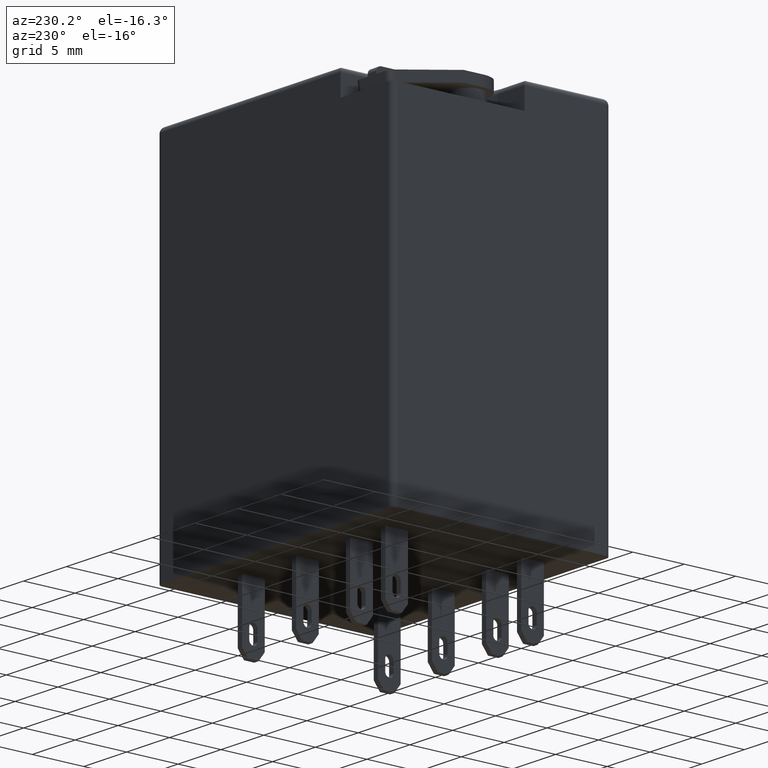
[diagram: clean part render]
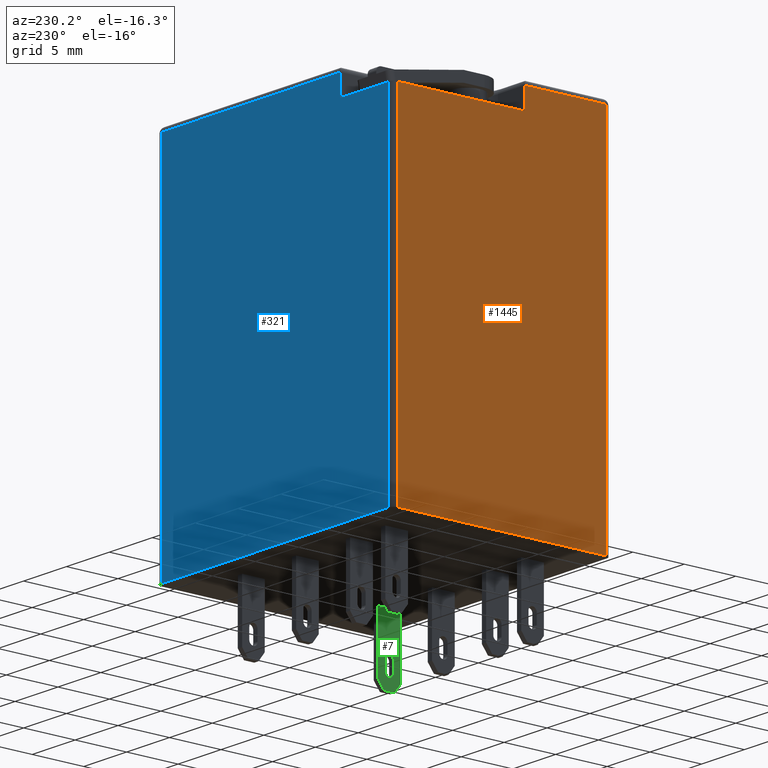
[diagram: same view with three faces highlighted in distinct colors, each labeled with its STEP entity id]
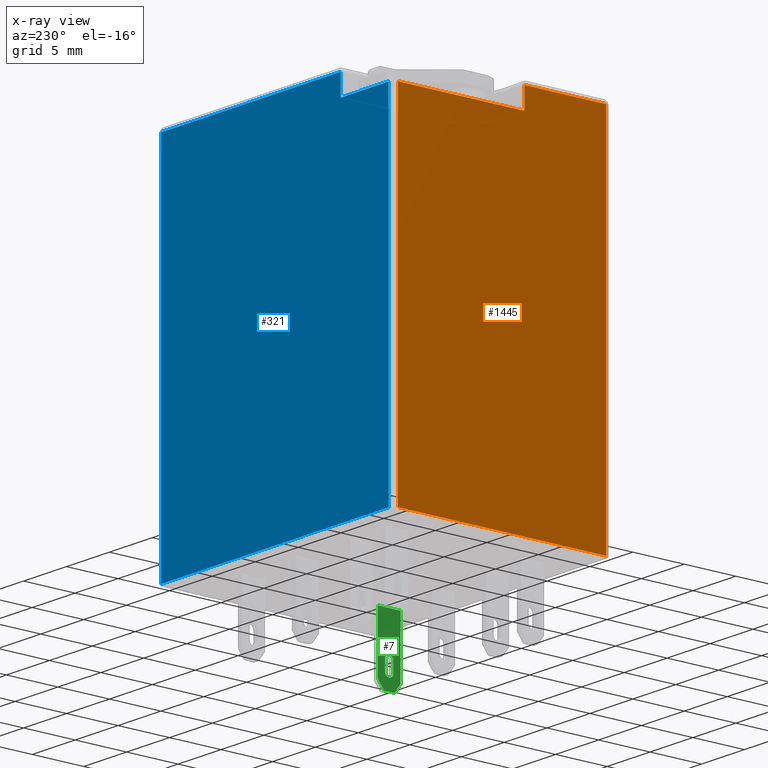
[diagram: x-ray of the same camera — body ghosted, the three highlighted faces saturated]
A machine part, auxiliary view with three faces highlighted in distinct colors.
The next image is the same camera in x-ray (body ghosted, the three faces saturated) — at least one of them is partly hidden behind the body in this view.
Their STEP definitions:

[orange] entity #1445 — the highlighted planar face has unit normal (1, 0, 0).
#1377 = VERTEX_POINT ( 'NONE', #4587 ) ;
#1379 = EDGE_CURVE ( 'NONE', #1380, #1377, #4586, .T. ) ;
#1380 = VERTEX_POINT ( 'NONE', #4582 ) ;
#1410 = VERTEX_POINT ( 'NONE', #4663 ) ;
#1412 = EDGE_CURVE ( 'NONE', #1410, #1413, #4662, .T. ) ;
#1413 = VERTEX_POINT ( 'NONE', #4658 ) ;
#1445 = ADVANCED_FACE ( 'NONE', ( #4704 ), #4748, .F. ) ;
#1446 = EDGE_LOOP ( 'NONE', ( #1447, #1463, #1466, #1468, #1469, #1471 ) ) ;
#1447 = ORIENTED_EDGE ( 'NONE', *, *, #1448, .T. ) ;
#1448 = EDGE_CURVE ( 'NONE', #1377, #1449, #4743, .T. ) ;
#1449 = VERTEX_POINT ( 'NONE', #4739 ) ;
#1463 = ORIENTED_EDGE ( 'NONE', *, *, #1464, .T. ) ;
#1464 = EDGE_CURVE ( 'NONE', #1449, #1465, #4777, .T. ) ;
#1465 = VERTEX_POINT ( 'NONE', #4773 ) ;
#1466 = ORIENTED_EDGE ( 'NONE', *, *, #1467, .F. ) ;
#1467 = EDGE_CURVE ( 'NONE', #1413, #1465, #4772, .T. ) ;
#1468 = ORIENTED_EDGE ( 'NONE', *, *, #1412, .F. ) ;
#1469 = ORIENTED_EDGE ( 'NONE', *, *, #1470, .T. ) ;
#1470 = EDGE_CURVE ( 'NONE', #1410, #1380, #4768, .T. ) ;
#1471 = ORIENTED_EDGE ( 'NONE', *, *, #1379, .T. ) ;
#4582 = CARTESIAN_POINT ( 'NONE',  ( -13.75000000000000200, 10.09999999999999800, 0.0000000000000000000 ) ) ;
#4583 = DIRECTION ( 'NONE',  ( 1.636531581110195400E-016, -1.000000000000000000, 0.0000000000000000000 ) ) ;
#4584 = VECTOR ( 'NONE', #4583, 1000.000000000000000 ) ;
#4585 = CARTESIAN_POINT ( 'NONE',  ( -13.75000000000000200, 10.59999999999999800, 0.0000000000000000000 ) ) ;
#4586 = LINE ( 'NONE', #4585, #4584 ) ;
#4587 = CARTESIAN_POINT ( 'NONE',  ( -13.74999999999999800, -10.10000000000000100, 0.0000000000000000000 ) ) ;
#4658 = CARTESIAN_POINT ( 'NONE',  ( -13.75000000000000200, -2.200000000000002800, 33.09999999999999400 ) ) ;
#4659 = DIRECTION ( 'NONE',  ( 0.0000000000000000000, -1.000000000000000000, 0.0000000000000000000 ) ) ;
#4660 = VECTOR ( 'NONE', #4659, 1000.000000000000000 ) ;
#4661 = CARTESIAN_POINT ( 'NONE',  ( -13.75000000000000200, -2.200000000000002800, 33.09999999999999400 ) ) ;
#4662 = LINE ( 'NONE', #4661, #4660 ) ;
#4663 = CARTESIAN_POINT ( 'NONE',  ( -13.75000000000000200, 10.09999999999999800, 33.09999999999999400 ) ) ;
#4704 = FACE_OUTER_BOUND ( 'NONE', #1446, .T. ) ;
#4739 = CARTESIAN_POINT ( 'NONE',  ( -13.74999999999999800, -10.10000000000000100, 35.10000000000000100 ) ) ;
#4740 = DIRECTION ( 'NONE',  ( 0.0000000000000000000, 0.0000000000000000000, 1.000000000000000000 ) ) ;
#4741 = VECTOR ( 'NONE', #4740, 1000.000000000000000 ) ;
#4742 = CARTESIAN_POINT ( 'NONE',  ( -13.74999999999999800, -10.10000000000000100, 35.60000000000000100 ) ) ;
#4743 = LINE ( 'NONE', #4742, #4741 ) ;
#4744 = DIRECTION ( 'NONE',  ( -1.636531581110195700E-016, 1.000000000000000000, 0.0000000000000000000 ) ) ;
#4745 = DIRECTION ( 'NONE',  ( 1.000000000000000000, 1.636531581110195700E-016, 0.0000000000000000000 ) ) ;
#4746 = CARTESIAN_POINT ( 'NONE',  ( -13.75000000000000200, 10.59999999999999800, 35.60000000000000100 ) ) ;
#4747 = AXIS2_PLACEMENT_3D ( 'NONE', #4746, #4745, #4744 ) ;
#4748 = PLANE ( 'NONE',  #4747 ) ;
#4764 = DIRECTION ( 'NONE',  ( 0.0000000000000000000, 0.0000000000000000000, -1.000000000000000000 ) ) ;
#4765 = VECTOR ( 'NONE', #4764, 1000.000000000000000 ) ;
#4766 = CARTESIAN_POINT ( 'NONE',  ( -13.75000000000000200, 10.09999999999999800, 35.60000000000000100 ) ) ;
#4768 = LINE ( 'NONE', #4766, #4765 ) ;
#4769 = DIRECTION ( 'NONE',  ( 0.0000000000000000000, 0.0000000000000000000, 1.000000000000000000 ) ) ;
#4770 = VECTOR ( 'NONE', #4769, 1000.000000000000000 ) ;
#4771 = CARTESIAN_POINT ( 'NONE',  ( -13.75000000000000200, -2.200000000000002800, 33.09999999999999400 ) ) ;
#4772 = LINE ( 'NONE', #4771, #4770 ) ;
#4773 = CARTESIAN_POINT ( 'NONE',  ( -13.75000000000000200, -2.200000000000002800, 35.10000000000000100 ) ) ;
#4774 = DIRECTION ( 'NONE',  ( -1.636531581110195700E-016, 1.000000000000000000, 0.0000000000000000000 ) ) ;
#4775 = VECTOR ( 'NONE', #4774, 1000.000000000000000 ) ;
#4776 = CARTESIAN_POINT ( 'NONE',  ( -13.75000000000000000, -2.200000000000002400, 35.10000000000000100 ) ) ;
#4777 = LINE ( 'NONE', #4776, #4775 ) ;

[blue] entity #321 — the highlighted planar face has unit normal (0, -1, 0).
#309 = ORIENTED_EDGE ( 'NONE', *, *, #1405, .F. ) ;
#310 = ORIENTED_EDGE ( 'NONE', *, *, #311, .T. ) ;
#311 = EDGE_CURVE ( 'NONE', #1406, #312, #2086, .T. ) ;
#312 = VERTEX_POINT ( 'NONE', #2082 ) ;
#313 = VERTEX_POINT ( 'NONE', #2081 ) ;
#314 = EDGE_CURVE ( 'NONE', #1394, #1407, #2080, .T. ) ;
#315 = ORIENTED_EDGE ( 'NONE', *, *, #314, .T. ) ;
#316 = EDGE_CURVE ( 'NONE', #313, #1426, #2075, .T. ) ;
#318 = ORIENTED_EDGE ( 'NONE', *, *, #319, .T. ) ;
#319 = EDGE_CURVE ( 'NONE', #312, #313, #2107, .T. ) ;
#320 = ORIENTED_EDGE ( 'NONE', *, *, #316, .T. ) ;
#321 = ADVANCED_FACE ( 'NONE', ( #2103 ), #2145, .F. ) ;
#322 = EDGE_LOOP ( 'NONE', ( #323, #315, #309, #310, #318, #320 ) ) ;
#323 = ORIENTED_EDGE ( 'NONE', *, *, #1396, .T. ) ;
#1394 = VERTEX_POINT ( 'NONE', #4622 ) ;
#1396 = EDGE_CURVE ( 'NONE', #1426, #1394, #4617, .T. ) ;
#1405 = EDGE_CURVE ( 'NONE', #1406, #1407, #4604, .T. ) ;
#1406 = VERTEX_POINT ( 'NONE', #4600 ) ;
#1407 = VERTEX_POINT ( 'NONE', #4599 ) ;
#1426 = VERTEX_POINT ( 'NONE', #4676 ) ;
#2072 = DIRECTION ( 'NONE',  ( 0.0000000000000000000, 0.0000000000000000000, -1.000000000000000000 ) ) ;
#2073 = VECTOR ( 'NONE', #2072, 1000.000000000000000 ) ;
#2074 = CARTESIAN_POINT ( 'NONE',  ( 13.24999999999999800, 10.59999999999999800, 35.60000000000000100 ) ) ;
#2075 = LINE ( 'NONE', #2074, #2073 ) ;
#2077 = DIRECTION ( 'NONE',  ( 0.0000000000000000000, 0.0000000000000000000, 1.000000000000000000 ) ) ;
#2078 = VECTOR ( 'NONE', #2077, 1000.000000000000000 ) ;
#2079 = CARTESIAN_POINT ( 'NONE',  ( -13.25000000000000200, 10.59999999999999800, 35.60000000000000100 ) ) ;
#2080 = LINE ( 'NONE', #2079, #2078 ) ;
#2081 = CARTESIAN_POINT ( 'NONE',  ( 13.24999999999999800, 10.59999999999999800, 35.10000000000000100 ) ) ;
#2082 = CARTESIAN_POINT ( 'NONE',  ( -7.650000000000003900, 10.59999999999999800, 35.10000000000000100 ) ) ;
#2083 = DIRECTION ( 'NONE',  ( 0.0000000000000000000, 0.0000000000000000000, 1.000000000000000000 ) ) ;
#2084 = VECTOR ( 'NONE', #2083, 1000.000000000000000 ) ;
#2085 = CARTESIAN_POINT ( 'NONE',  ( -7.650000000000003900, 10.59999999999999800, 33.09999999999999400 ) ) ;
#2086 = LINE ( 'NONE', #2085, #2084 ) ;
#2103 = FACE_OUTER_BOUND ( 'NONE', #322, .T. ) ;
#2104 = DIRECTION ( 'NONE',  ( 1.000000000000000000, 0.0000000000000000000, 0.0000000000000000000 ) ) ;
#2105 = VECTOR ( 'NONE', #2104, 1000.000000000000000 ) ;
#2106 = CARTESIAN_POINT ( 'NONE',  ( 13.74999999999999800, 10.59999999999999800, 35.10000000000000100 ) ) ;
#2107 = LINE ( 'NONE', #2106, #2105 ) ;
#2141 = DIRECTION ( 'NONE',  ( 0.0000000000000000000, 0.0000000000000000000, -1.000000000000000000 ) ) ;
#2142 = DIRECTION ( 'NONE',  ( 0.0000000000000000000, -1.000000000000000000, 0.0000000000000000000 ) ) ;
#2143 = CARTESIAN_POINT ( 'NONE',  ( -13.75000000000000200, 10.59999999999999800, 35.60000000000000100 ) ) ;
#2144 = AXIS2_PLACEMENT_3D ( 'NONE', #2143, #2142, #2141 ) ;
#2145 = PLANE ( 'NONE',  #2144 ) ;
#4599 = CARTESIAN_POINT ( 'NONE',  ( -13.25000000000000200, 10.59999999999999800, 33.09999999999999400 ) ) ;
#4600 = CARTESIAN_POINT ( 'NONE',  ( -7.650000000000003900, 10.59999999999999800, 33.09999999999999400 ) ) ;
#4601 = DIRECTION ( 'NONE',  ( -1.000000000000000000, 0.0000000000000000000, 0.0000000000000000000 ) ) ;
#4602 = VECTOR ( 'NONE', #4601, 1000.000000000000000 ) ;
#4603 = CARTESIAN_POINT ( 'NONE',  ( -13.75000000000000200, 10.59999999999999800, 33.09999999999999400 ) ) ;
#4604 = LINE ( 'NONE', #4603, #4602 ) ;
#4614 = DIRECTION ( 'NONE',  ( -1.000000000000000000, 0.0000000000000000000, 0.0000000000000000000 ) ) ;
#4615 = VECTOR ( 'NONE', #4614, 1000.000000000000000 ) ;
#4616 = CARTESIAN_POINT ( 'NONE',  ( -13.75000000000000200, 10.59999999999999800, 0.0000000000000000000 ) ) ;
#4617 = LINE ( 'NONE', #4616, #4615 ) ;
#4622 = CARTESIAN_POINT ( 'NONE',  ( -13.25000000000000200, 10.59999999999999800, 0.0000000000000000000 ) ) ;
#4676 = CARTESIAN_POINT ( 'NONE',  ( 13.24999999999999800, 10.59999999999999800, 0.0000000000000000000 ) ) ;

[green] entity #7 — the highlighted planar face has unit normal (1, 0, 0).
#1 = VERTEX_POINT ( 'NONE', #1541 ) ;
#6 = EDGE_LOOP ( 'NONE', ( #1037, #29, #20, #18, #16 ) ) ;
#7 = ADVANCED_FACE ( 'NONE', ( #1535, #1534 ), #1585, .F. ) ;
#9 = EDGE_CURVE ( 'NONE', #1, #1508, #1579, .T. ) ;
#11 = VERTEX_POINT ( 'NONE', #1608 ) ;
#12 = VERTEX_POINT ( 'NONE', #1607 ) ;
#13 = EDGE_CURVE ( 'NONE', #11, #12, #1606, .T. ) ;
#14 = ORIENTED_EDGE ( 'NONE', *, *, #13, .F. ) ;
#15 = EDGE_LOOP ( 'NONE', ( #14, #5260, #5257, #5258, #5256, #5253 ) ) ;
#16 = ORIENTED_EDGE ( 'NONE', *, *, #17, .T. ) ;
#17 = EDGE_CURVE ( 'NONE', #1280, #34, #1602, .T. ) ;
#18 = ORIENTED_EDGE ( 'NONE', *, *, #1276, .T. ) ;
#19 = EDGE_CURVE ( 'NONE', #21, #1277, #1597, .T. ) ;
#20 = ORIENTED_EDGE ( 'NONE', *, *, #19, .T. ) ;
#21 = VERTEX_POINT ( 'NONE', #1590 ) ;
#27 = EDGE_CURVE ( 'NONE', #35, #21, #1621, .T. ) ;
#29 = ORIENTED_EDGE ( 'NONE', *, *, #27, .T. ) ;
#33 = EDGE_CURVE ( 'NONE', #34, #35, #1673, .T. ) ;
#34 = VERTEX_POINT ( 'NONE', #1669 ) ;
#35 = VERTEX_POINT ( 'NONE', #1668 ) ;
#1037 = ORIENTED_EDGE ( 'NONE', *, *, #33, .T. ) ;
#1276 = EDGE_CURVE ( 'NONE', #1277, #1280, #4346, .T. ) ;
#1277 = VERTEX_POINT ( 'NONE', #4402 ) ;
#1280 = VERTEX_POINT ( 'NONE', #4397 ) ;
#1505 = VERTEX_POINT ( 'NONE', #4807 ) ;
#1507 = EDGE_CURVE ( 'NONE', #1508, #1505, #4870, .T. ) ;
#1508 = VERTEX_POINT ( 'NONE', #4866 ) ;
#1534 = FACE_OUTER_BOUND ( 'NONE', #15, .T. ) ;
#1535 = FACE_BOUND ( 'NONE', #6, .T. ) ;
#1541 = CARTESIAN_POINT ( 'NONE',  ( 7.300000000000003400, -7.700000000000000200, -5.699999999999999300 ) ) ;
#1576 = DIRECTION ( 'NONE',  ( 0.0000000000000000000, 0.0000000000000000000, 1.000000000000000000 ) ) ;
#1577 = VECTOR ( 'NONE', #1576, 1000.000000000000000 ) ;
#1578 = CARTESIAN_POINT ( 'NONE',  ( 7.300000000000003400, -7.699999999999998400, -6.500000000000000000 ) ) ;
#1579 = LINE ( 'NONE', #1578, #1577 ) ;
#1581 = DIRECTION ( 'NONE',  ( 0.0000000000000000000, 0.0000000000000000000, -1.000000000000000000 ) ) ;
#1582 = DIRECTION ( 'NONE',  ( 1.000000000000000000, 0.0000000000000000000, 0.0000000000000000000 ) ) ;
#1583 = CARTESIAN_POINT ( 'NONE',  ( 7.300000000000003400, -5.499999999999998200, -6.500000000000000000 ) ) ;
#1584 = AXIS2_PLACEMENT_3D ( 'NONE', #1583, #1582, #1581 ) ;
#1585 = PLANE ( 'NONE',  #1584 ) ;
#1590 = CARTESIAN_POINT ( 'NONE',  ( 7.300000000000003400, -6.199999999999998400, -4.999999999999999100 ) ) ;
#1594 = DIRECTION ( 'NONE',  ( 0.0000000000000000000, 8.673617379884044300E-016, 1.000000000000000000 ) ) ;
#1595 = VECTOR ( 'NONE', #1594, 1000.000000000000000 ) ;
#1596 = CARTESIAN_POINT ( 'NONE',  ( 7.300000000000003400, -6.199999999999999300, -6.499999999999999100 ) ) ;
#1597 = LINE ( 'NONE', #1596, #1595 ) ;
#1598 = DIRECTION ( 'NONE',  ( 0.0000000000000000000, 0.0000000000000000000, -1.000000000000000000 ) ) ;
#1599 = DIRECTION ( 'NONE',  ( 1.000000000000000000, 0.0000000000000000000, 0.0000000000000000000 ) ) ;
#1600 = CARTESIAN_POINT ( 'NONE',  ( 7.300000000000003400, -6.599999999999997900, -3.999999999999999100 ) ) ;
#1601 = AXIS2_PLACEMENT_3D ( 'NONE', #1600, #1599, #1598 ) ;
#1602 = CIRCLE ( 'NONE', #1601, 0.4000000000000010200 ) ;
#1603 = DIRECTION ( 'NONE',  ( 0.0000000000000000000, 1.000000000000000000, 0.0000000000000000000 ) ) ;
#1604 = VECTOR ( 'NONE', #1603, 1000.000000000000000 ) ;
#1605 = CARTESIAN_POINT ( 'NONE',  ( 7.300000000000003400, -5.499999999999998200, -6.500000000000000000 ) ) ;
#1606 = LINE ( 'NONE', #1605, #1604 ) ;
#1607 = CARTESIAN_POINT ( 'NONE',  ( 7.300000000000003400, -6.099999999999996100, -6.500000000000000000 ) ) ;
#1608 = CARTESIAN_POINT ( 'NONE',  ( 7.300000000000003400, -7.100000000000000500, -6.500000000000000000 ) ) ;
#1617 = DIRECTION ( 'NONE',  ( 0.0000000000000000000, 0.0000000000000000000, -1.000000000000000000 ) ) ;
#1618 = DIRECTION ( 'NONE',  ( 1.000000000000000000, 0.0000000000000000000, 0.0000000000000000000 ) ) ;
#1619 = CARTESIAN_POINT ( 'NONE',  ( 7.300000000000003400, -6.599999999999997900, -4.999999999999999100 ) ) ;
#1620 = AXIS2_PLACEMENT_3D ( 'NONE', #1619, #1618, #1617 ) ;
#1621 = CIRCLE ( 'NONE', #1620, 0.4000000000000001900 ) ;
#1668 = CARTESIAN_POINT ( 'NONE',  ( 7.300000000000003400, -6.999999999999999100, -4.999999999999999100 ) ) ;
#1669 = CARTESIAN_POINT ( 'NONE',  ( 7.300000000000003400, -6.999999999999999100, -4.000000000000000000 ) ) ;
#1670 = DIRECTION ( 'NONE',  ( 0.0000000000000000000, 8.673617379884044300E-016, -1.000000000000000000 ) ) ;
#1671 = VECTOR ( 'NONE', #1670, 1000.000000000000000 ) ;
#1672 = CARTESIAN_POINT ( 'NONE',  ( 7.300000000000003400, -6.999999999999997300, -6.500000000000001800 ) ) ;
#1673 = LINE ( 'NONE', #1672, #1671 ) ;
#4343 = DIRECTION ( 'NONE',  ( 1.000000000000000000, 0.0000000000000000000, 0.0000000000000000000 ) ) ;
#4344 = CARTESIAN_POINT ( 'NONE',  ( 7.300000000000003400, -6.599999999999997900, -3.999999999999999100 ) ) ;
#4345 = AXIS2_PLACEMENT_3D ( 'NONE', #4344, #4343, #4403 ) ;
#4346 = CIRCLE ( 'NONE', #4345, 0.4000000000000010200 ) ;
#4397 = CARTESIAN_POINT ( 'NONE',  ( 7.300000000000003400, -6.599999999999997900, -3.599999999999998300 ) ) ;
#4402 = CARTESIAN_POINT ( 'NONE',  ( 7.300000000000003400, -6.199999999999997500, -4.000000000000000000 ) ) ;
#4403 = DIRECTION ( 'NONE',  ( 0.0000000000000000000, 0.0000000000000000000, -1.000000000000000000 ) ) ;
#4807 = CARTESIAN_POINT ( 'NONE',  ( 7.300000000000004300, -5.499999999999998200, 0.0000000000000000000 ) ) ;
#4866 = CARTESIAN_POINT ( 'NONE',  ( 7.300000000000004300, -7.699999999999998400, 0.0000000000000000000 ) ) ;
#4867 = DIRECTION ( 'NONE',  ( 0.0000000000000000000, 1.000000000000000000, 0.0000000000000000000 ) ) ;
#4868 = VECTOR ( 'NONE', #4867, 1000.000000000000000 ) ;
#4869 = CARTESIAN_POINT ( 'NONE',  ( 7.300000000000003400, -5.499999999999998200, 0.0000000000000000000 ) ) ;
#4870 = LINE ( 'NONE', #4869, #4868 ) ;
#5120 = DIRECTION ( 'NONE',  ( 0.0000000000000000000, -0.5999999999999997600, 0.8000000000000002700 ) ) ;
#5121 = VECTOR ( 'NONE', #5120, 1000.000000000000100 ) ;
#5122 = CARTESIAN_POINT ( 'NONE',  ( 7.300000000000003400, -6.524000000000000000, -7.268000000000000700 ) ) ;
#5123 = LINE ( 'NONE', #5122, #5121 ) ;
#5125 = DIRECTION ( 'NONE',  ( 0.0000000000000000000, 0.0000000000000000000, 1.000000000000000000 ) ) ;
#5126 = VECTOR ( 'NONE', #5125, 1000.000000000000000 ) ;
#5127 = CARTESIAN_POINT ( 'NONE',  ( 7.300000000000003400, -5.499999999999998200, -6.500000000000000000 ) ) ;
#5128 = LINE ( 'NONE', #5127, #5126 ) ;
#5129 = CARTESIAN_POINT ( 'NONE',  ( 7.300000000000003400, -5.499999999999996400, -5.699999999999999300 ) ) ;
#5130 = DIRECTION ( 'NONE',  ( 0.0000000000000000000, -0.5999999999999997600, -0.8000000000000002700 ) ) ;
#5131 = VECTOR ( 'NONE', #5130, 1000.000000000000100 ) ;
#5132 = CARTESIAN_POINT ( 'NONE',  ( 7.300000000000003400, -5.883999999999996800, -6.212000000000000600 ) ) ;
#5133 = LINE ( 'NONE', #5132, #5131 ) ;
#5252 = EDGE_CURVE ( 'NONE', #5254, #12, #5133, .T. ) ;
#5253 = ORIENTED_EDGE ( 'NONE', *, *, #5252, .T. ) ;
#5254 = VERTEX_POINT ( 'NONE', #5129 ) ;
#5255 = EDGE_CURVE ( 'NONE', #5254, #1505, #5128, .T. ) ;
#5256 = ORIENTED_EDGE ( 'NONE', *, *, #5255, .F. ) ;
#5257 = ORIENTED_EDGE ( 'NONE', *, *, #9, .T. ) ;
#5258 = ORIENTED_EDGE ( 'NONE', *, *, #1507, .T. ) ;
#5259 = EDGE_CURVE ( 'NONE', #11, #1, #5123, .T. ) ;
#5260 = ORIENTED_EDGE ( 'NONE', *, *, #5259, .T. ) ;